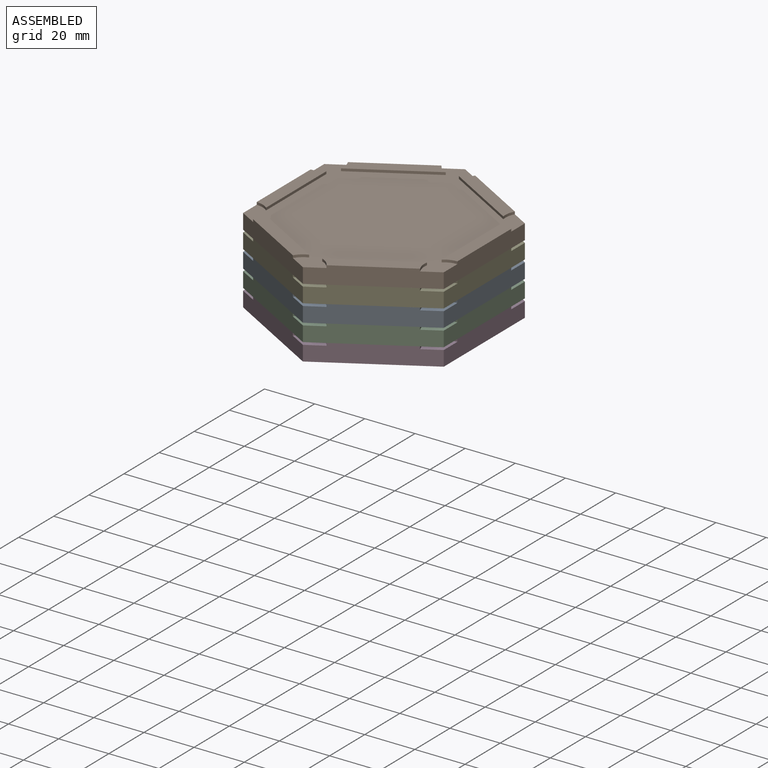
[diagram: assembled view]
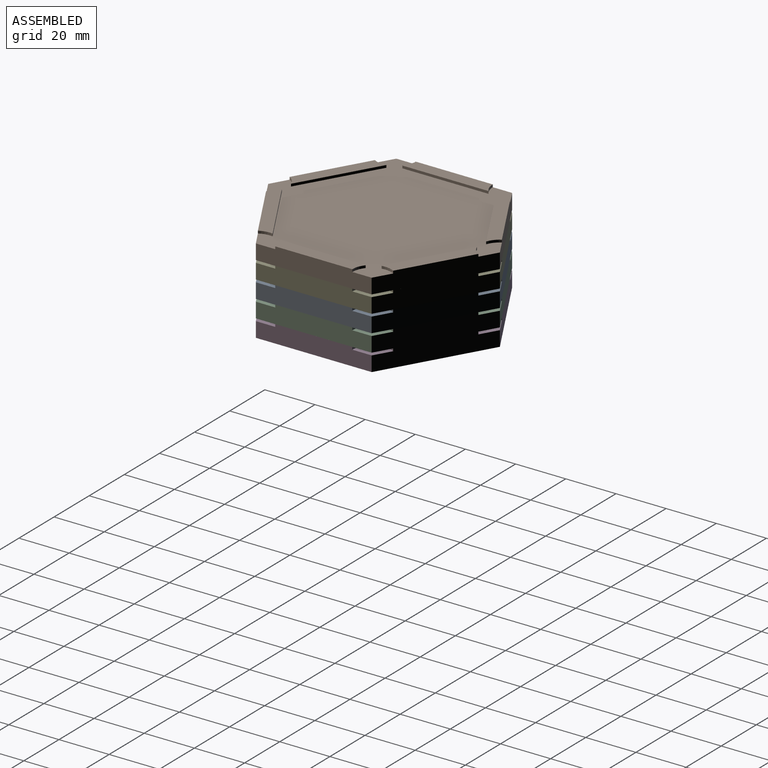
[diagram: assembled view, second angle]
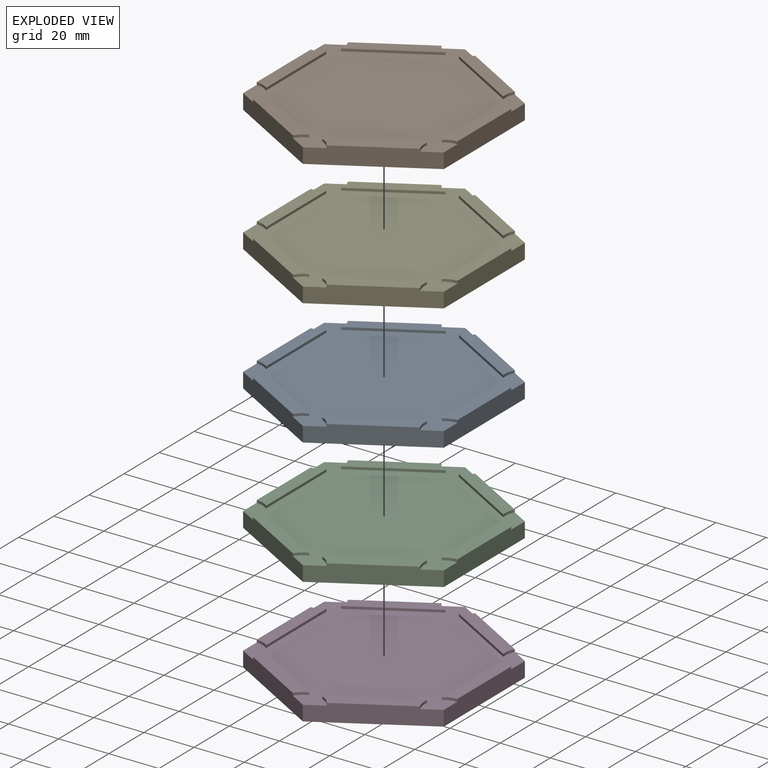
[diagram: exploded view]
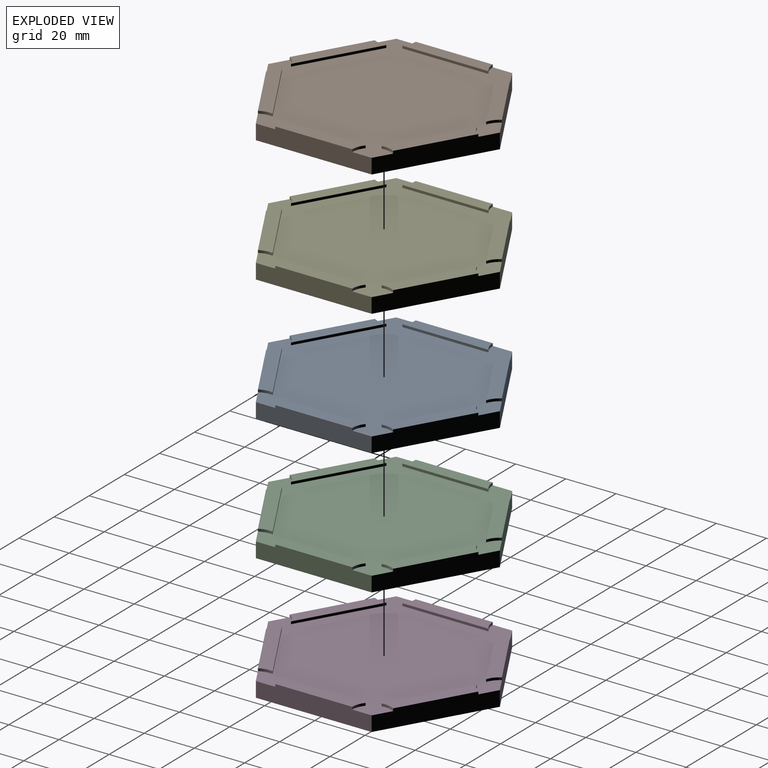
[diagram: exploded view, second angle]
ASSEMBLY  parts=5 mates=4
PART A: 92 faces, bbox 80x92.4x7 mm
  f0: cylinder r=2.35mm len=4.7mm, axis (0,0,-1), area 14.8mm2, adj f12,f33
  f1: cylinder r=2.35mm len=4.7mm, axis (0,0,-1), area 14.8mm2, adj f12,f35
  f2: cylinder r=2.35mm len=4.7mm, axis (0,0,-1), area 14.8mm2, adj f12,f45
  f3: cylinder r=2.35mm len=4.7mm, axis (0,0,-1), area 14.8mm2, adj f12,f47
  f4: cylinder r=2.35mm len=4.7mm, axis (0,0,-1), area 14.8mm2, adj f12,f37
  f5: cylinder r=2.35mm len=4.7mm, axis (0,0,-1), area 14.8mm2, adj f12,f39
  f6: cylinder r=2.35mm len=4.7mm, axis (0,0,-1), area 14.8mm2, adj f12,f49
  f7: cylinder r=2.35mm len=4.7mm, axis (0,0,-1), area 14.8mm2, adj f12,f51
  f8: cylinder r=2.35mm len=4.7mm, axis (0,0,-1), area 14.8mm2, adj f12,f41
  f9: cylinder r=2.35mm len=4.7mm, axis (0,0,-1), area 14.8mm2, adj f12,f43
  f10: cylinder r=2.35mm len=4.7mm, axis (0,0,-1), area 14.8mm2, adj f12,f53
  f11: cylinder r=2.35mm len=4.7mm, axis (0,0,-1), area 14.8mm2, adj f12,f55
  f12: plane 92.38x80mm, normal (0,0,-1), area 5334.4mm2, adj f0,f1,f2,f3,f4,f5,f6,f7
  f13: plane 40x23.09mm, normal (-0.5,-0.87,0), area 307.8mm2, adj f12,f14,f18,f19,f69,f70,f71
  f14: plane 40x23.09mm, normal (0.5,-0.87,0), area 307.8mm2, adj f12,f13,f15,f19,f62,f64,f65
  f15: plane 46.19x7mm, normal (1,0,0), area 307.8mm2, adj f12,f14,f16,f19,f57,f58,f59
  f16: plane 40x23.09mm, normal (0.5,0.87,0), area 307.8mm2, adj f12,f15,f17,f19,f86,f88,f89
  f17: plane 40x23.09mm, normal (-0.5,0.87,0), area 307.8mm2, adj f12,f16,f18,f19,f81,f82,f83
  f18: plane 46.19x7mm, normal (-1,0,0), area 307.8mm2, adj f12,f13,f17,f19,f74,f76,f77
  f19: plane 92.38x80mm, normal (0,0,1), area 4587.3mm2, adj f13,f14,f15,f16,f17,f18,f56,f57
  f20: plane 8x7.5mm, normal (0,0,-1), area 49mm2, adj f32,f78
  f21: plane 8x7.5mm, normal (0,0,-1), area 49mm2, adj f34,f79
  f22: plane 8x8mm, normal (0,0,-1), area 49mm2, adj f44,f84
  f23: plane 8x8mm, normal (0,0,-1), area 49mm2, adj f46,f85
  f24: plane 8x8mm, normal (0,0,-1), area 49mm2, adj f36,f90
  f25: plane 8x8mm, normal (0,0,-1), area 49mm2, adj f38,f91
  f26: plane 8x7.5mm, normal (0,0,-1), area 49mm2, adj f48,f60
  f27: plane 8x7.5mm, normal (0,0,-1), area 49mm2, adj f50,f61
  f28: plane 8x8mm, normal (0,0,-1), area 49mm2, adj f40,f66
  f29: plane 8x8mm, normal (0,0,-1), area 49mm2, adj f42,f67
  f30: plane 8x8mm, normal (0,0,-1), area 49mm2, adj f52,f72
  f31: plane 8x8mm, normal (0,0,-1), area 49mm2, adj f54,f73
  f32: cylinder r=4mm len=8mm, axis (0,0,-1), area 84.4mm2, adj f20,f33,f78
  f33: plane 8x7.5mm, normal (0,0,1), area 31.6mm2, adj f0,f32,f78
  f34: cylinder r=4mm len=8mm, axis (0,0,-1), area 84.4mm2, adj f21,f35,f79
  f35: plane 8x7.5mm, normal (0,0,1), area 31.6mm2, adj f1,f34,f79
  f36: cylinder r=4mm len=8mm, axis (0,0,-1), area 84.4mm2, adj f24,f37,f90
  f37: plane 8x8mm, normal (0,0,1), area 31.6mm2, adj f4,f36,f90
  f38: cylinder r=4mm len=8mm, axis (0,0,-1), area 84.4mm2, adj f25,f39,f91
  f39: plane 8x8mm, normal (0,0,1), area 31.6mm2, adj f5,f38,f91
  f40: cylinder r=4mm len=8mm, axis (0,0,-1), area 84.4mm2, adj f28,f41,f66
  f41: plane 8x8mm, normal (0,0,1), area 31.6mm2, adj f8,f40,f66
  f42: cylinder r=4mm len=8mm, axis (0,0,-1), area 84.4mm2, adj f29,f43,f67
  f43: plane 8x8mm, normal (0,0,1), area 31.6mm2, adj f9,f42,f67
  f44: cylinder r=4mm len=8mm, axis (0,0,-1), area 84.4mm2, adj f22,f45,f84
  f45: plane 8x8mm, normal (0,0,1), area 31.6mm2, adj f2,f44,f84
  f46: cylinder r=4mm len=8mm, axis (0,0,-1), area 84.4mm2, adj f23,f47,f85
  f47: plane 8x8mm, normal (0,0,1), area 31.6mm2, adj f3,f46,f85
  f48: cylinder r=4mm len=8mm, axis (0,0,-1), area 84.4mm2, adj f26,f49,f60
  f49: plane 8x7.5mm, normal (0,0,1), area 31.6mm2, adj f6,f48,f60
  f50: cylinder r=4mm len=8mm, axis (0,0,-1), area 84.4mm2, adj f27,f51,f61
  f51: plane 8x7.5mm, normal (0,0,1), area 31.6mm2, adj f7,f50,f61
  f52: cylinder r=4mm len=8mm, axis (0,0,-1), area 84.4mm2, adj f30,f53,f72
  f53: plane 8x8mm, normal (0,0,1), area 31.6mm2, adj f10,f52,f72
  f54: cylinder r=4mm len=8mm, axis (0,0,-1), area 84.4mm2, adj f31,f55,f73
  f55: plane 8x8mm, normal (0,0,1), area 31.6mm2, adj f11,f54,f73
  f56: plane 34.35x1mm, normal (-1,0,0), area 34.3mm2, adj f19,f57,f58,f59
  f57: cylinder r=7.75mm len=5mm, axis (0,0,-1), area 5.4mm2, adj f15,f19,f56,f59
  f58: cylinder r=7.75mm len=5mm, axis (0,0,-1), area 5.4mm2, adj f15,f19,f56,f59
  f59: plane 34.35x5mm, normal (0,0,1), area 159.2mm2, adj f15,f56,f57,f58
  f60: plane 4x3.87mm, normal (-1,0,0), area 15.5mm2, adj f26,f48,f49
  f61: plane 4x3.87mm, normal (-1,0,0), area 15.5mm2, adj f27,f50,f51
  f62: cylinder r=7.75mm len=5.24mm, axis (0,0,-1), area 5.4mm2, adj f14,f19,f63,f65
  f63: plane 29.74x17.17mm, normal (-0.5,0.87,0), area 34.3mm2, adj f19,f62,f64,f65
  f64: cylinder r=7.75mm len=4.08mm, axis (0,0,-1), area 5.4mm2, adj f14,f19,f63,f65
  f65: plane 30.66x20.59mm, normal (0,0,1), area 159.2mm2, adj f14,f62,f63,f64
  f66: plane 4x3.35mm, normal (-0.5,0.87,0), area 15.5mm2, adj f28,f40,f41
  f67: plane 4x3.35mm, normal (-0.5,0.87,0), area 15.5mm2, adj f29,f42,f43
  f68: plane 29.74x17.17mm, normal (0.5,0.87,0), area 34.3mm2, adj f19,f69,f70,f71
  f69: cylinder r=7.75mm len=4.08mm, axis (0,0,-1), area 5.4mm2, adj f13,f19,f68,f71
  f70: cylinder r=7.75mm len=5.24mm, axis (0,0,-1), area 5.4mm2, adj f13,f19,f68,f71
  f71: plane 30.66x20.59mm, normal (0,0,1), area 159.2mm2, adj f13,f68,f69,f70
  f72: plane 4x3.35mm, normal (0.5,0.87,0), area 15.5mm2, adj f30,f52,f53
  f73: plane 4x3.35mm, normal (0.5,0.87,0), area 15.5mm2, adj f31,f54,f55
  f74: cylinder r=7.75mm len=5mm, axis (0,0,-1), area 5.4mm2, adj f18,f19,f75,f77
  f75: plane 34.35x1mm, normal (1,0,0), area 34.3mm2, adj f19,f74,f76,f77
  f76: cylinder r=7.75mm len=5mm, axis (0,0,-1), area 5.4mm2, adj f18,f19,f75,f77
  f77: plane 34.35x5mm, normal (0,0,1), area 159.2mm2, adj f18,f74,f75,f76
  f78: plane 4x3.87mm, normal (1,0,0), area 15.5mm2, adj f20,f32,f33
  f79: plane 4x3.87mm, normal (1,0,0), area 15.5mm2, adj f21,f34,f35
  f80: plane 29.74x17.17mm, normal (0.5,-0.87,0), area 34.3mm2, adj f19,f81,f82,f83
  f81: cylinder r=7.75mm len=5.24mm, axis (0,0,-1), area 5.4mm2, adj f17,f19,f80,f83
  f82: cylinder r=7.75mm len=4.08mm, axis (0,0,-1), area 5.4mm2, adj f17,f19,f80,f83
  f83: plane 30.66x20.59mm, normal (0,0,1), area 159.2mm2, adj f17,f80,f81,f82
  f84: plane 4x3.35mm, normal (0.5,-0.87,0), area 15.5mm2, adj f22,f44,f45
  f85: plane 4x3.35mm, normal (0.5,-0.87,0), area 15.5mm2, adj f23,f46,f47
  f86: cylinder r=7.75mm len=4.08mm, axis (0,0,-1), area 5.4mm2, adj f16,f19,f87,f89
  f87: plane 29.74x17.17mm, normal (-0.5,-0.87,0), area 34.3mm2, adj f19,f86,f88,f89
  f88: cylinder r=7.75mm len=5.24mm, axis (0,0,-1), area 5.4mm2, adj f16,f19,f87,f89
  f89: plane 30.66x20.59mm, normal (0,0,1), area 159.2mm2, adj f16,f86,f87,f88
  f90: plane 4x3.35mm, normal (-0.5,-0.87,0), area 15.5mm2, adj f24,f36,f37
  f91: plane 4x3.35mm, normal (-0.5,-0.87,0), area 15.5mm2, adj f25,f38,f39
PART B: same geometry as A
PART C: same geometry as A
PART D: same geometry as A
PART E: same geometry as A
PLACE A t=(0,-0.42,9.8)mm
PLACE B t=(0,-0.42,23.8)mm
PLACE C t=(0,-0.42,2.8)mm
PLACE D t=(0,-0.42,-4.2)mm
PLACE E t=(0,-0.42,16.8)mm
MATE fastened E.f12 <-> A.f65  axis (0,0,-1) through (0,-0.42,16.8)mm
MATE fastened B.f12 <-> E.f65  axis (0,0,-1) through (0,-0.42,23.8)mm
MATE fastened C.f12 <-> D.f65  axis (0,0,-1) through (0,-0.42,2.8)mm
MATE fastened A.f12 <-> C.f65  axis (0,0,-1) through (0,-0.42,9.8)mm
